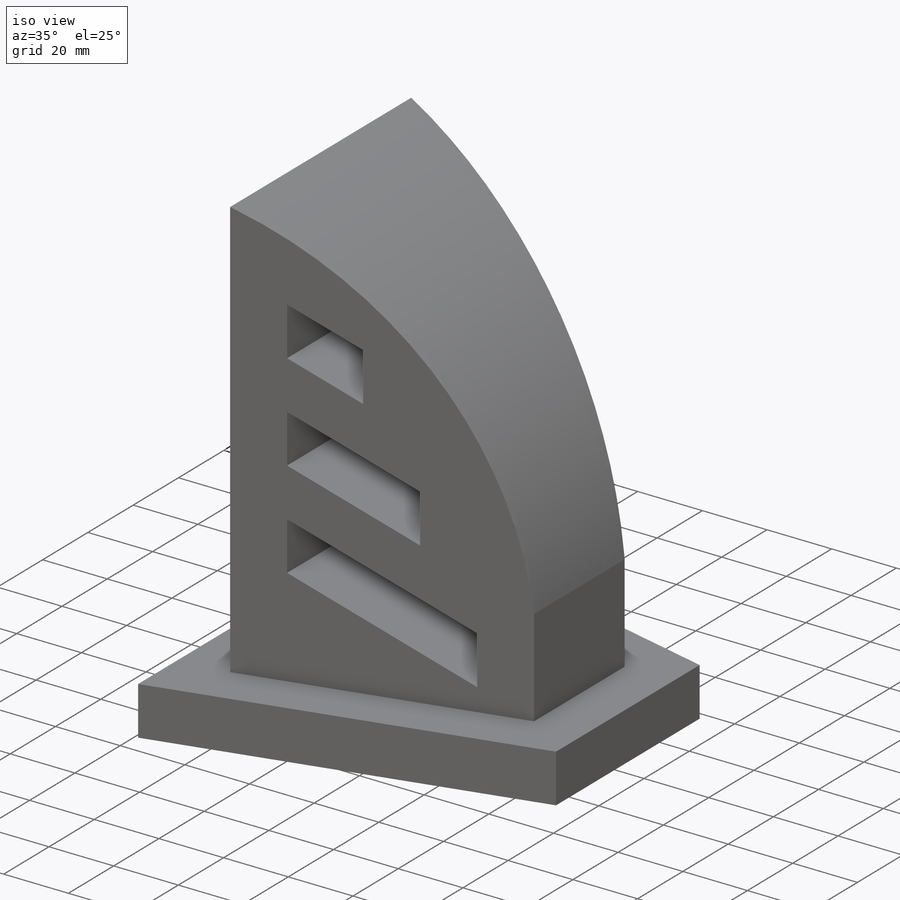
[diagram: iso view]
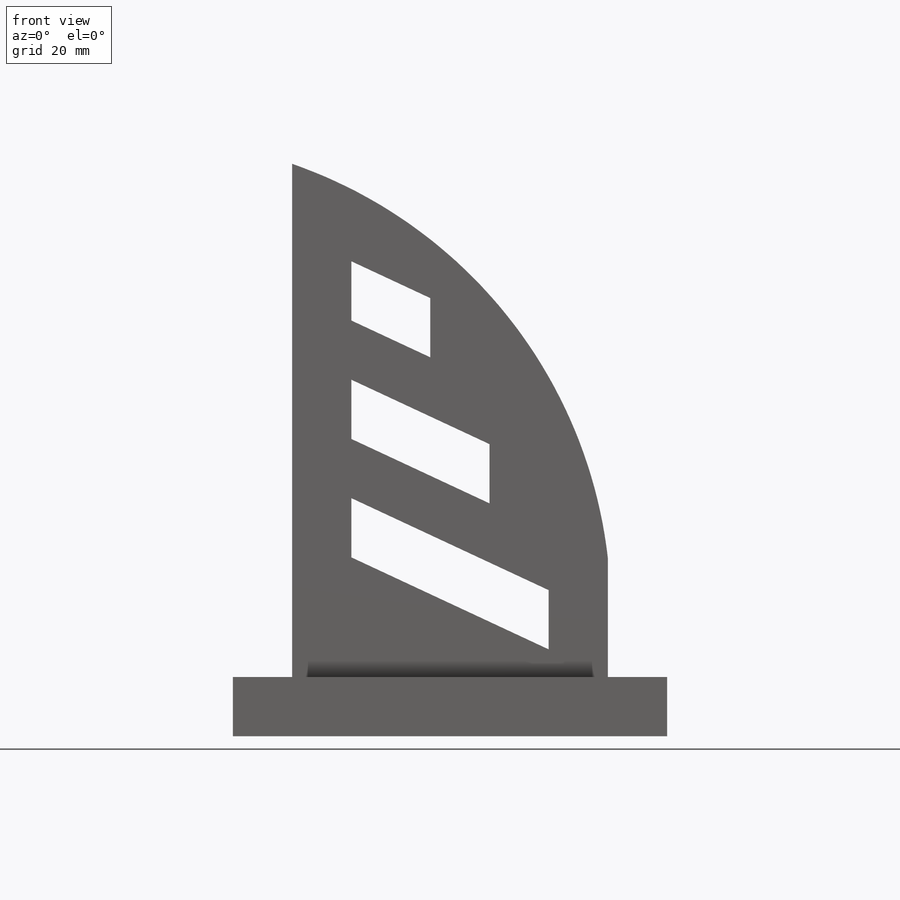
[diagram: front view]
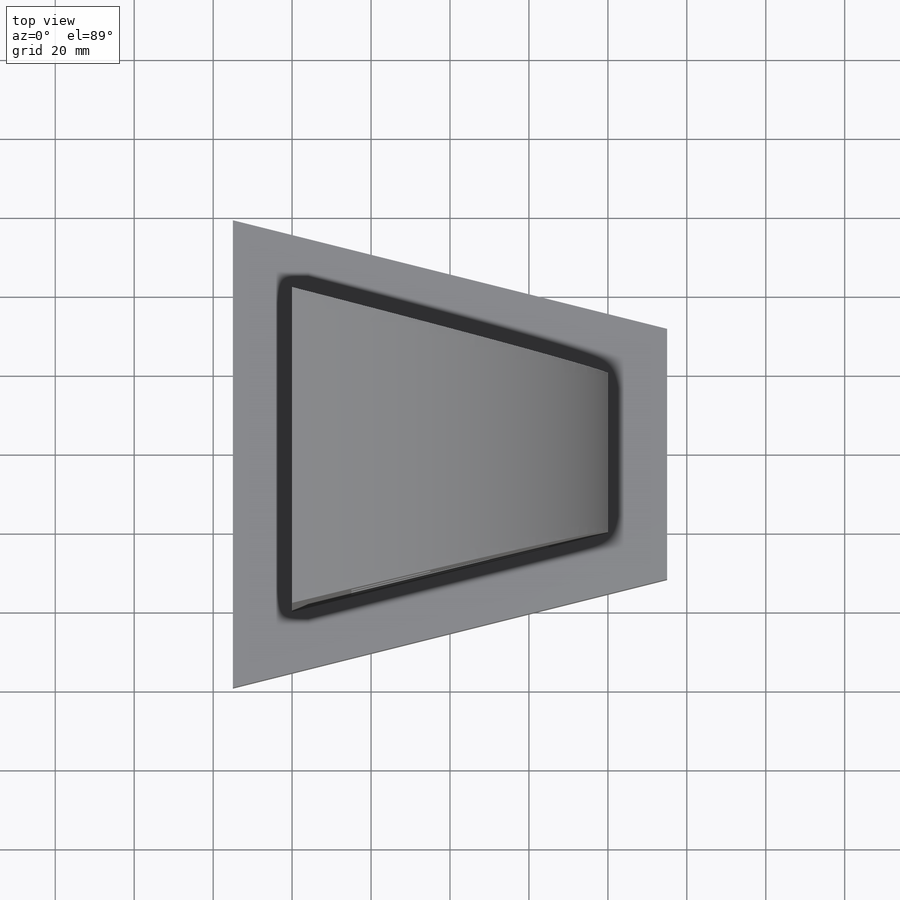
[diagram: top view]
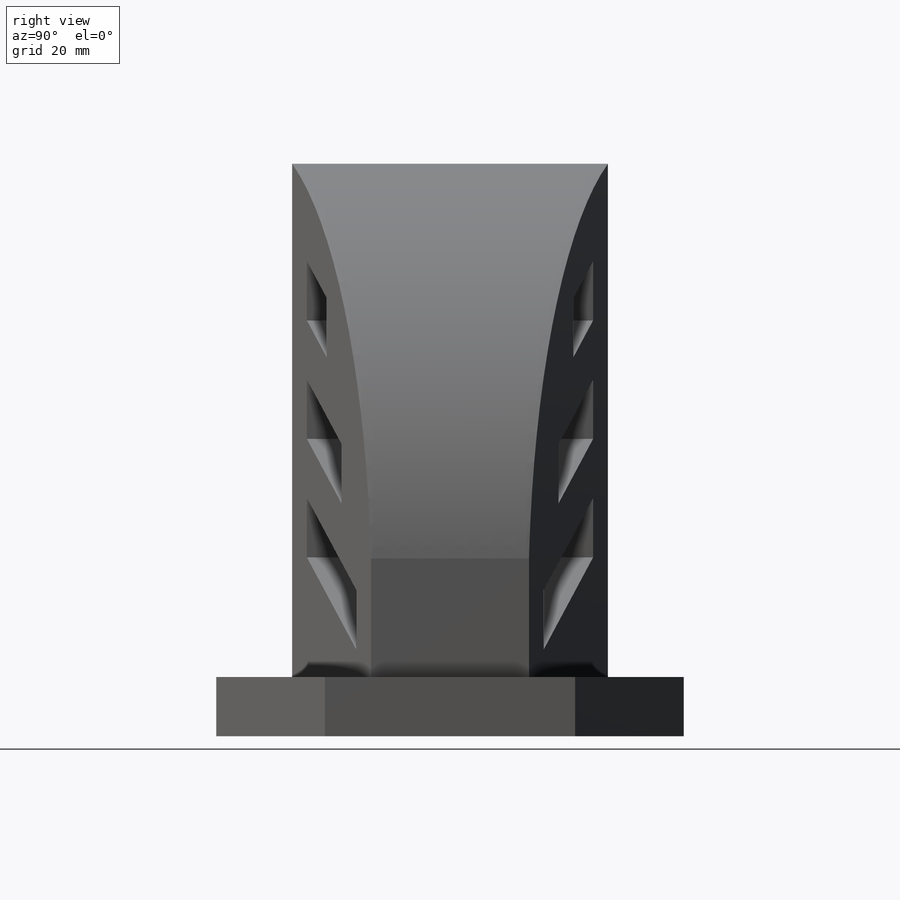
[diagram: right view]
SOLIDWORKS PART (.sldprt)
format: sldprt  version: not decoded by parser v0  size: 297,472 bytes
history: native  units: mm
features: sketch x3, extrude x2, material x1, cut_extrude x1 (+16 scaffold rows collapsed)
feature tree (23):
  scaffold x16  (default folders/planes/origin — collapsed)
  material  "Material <not specified>"
  sketch  "Sketch1"  dims[D1=40.0mm D2=80.0mm D3=80.0mm D4=15.0mm D5=15.0mm D6=15.0mm D7=15.0mm]
  extrude  "Extrude1"  Depth=15mm
  sketch  "Sketch2"
  extrude  "Extrude2"  Depth=130mm
  sketch  "Sketch3"  dims[c1.D1=120.0mm c1.D2=~44.473713mm c2.D2=25.0deg c2.D3=15.0mm c2.D4=15.0mm c2.D5=15.0mm c2.D6=15.0mm c2.D7=15.0mm c2.D8=30.0mm c2.D9=15.0mm c2.D10=20.0mm c2.D11=15.0mm c2.D12=15.0mm]
  cut_extrude  "Extrude3"  Depth=130mm
decode coverage: 5 of 6 modeling features carry decoded parameters
note: ~ marks probable driven/reference dimensions
note: suppression state not decoded; provenance and decode notes live in map.json
